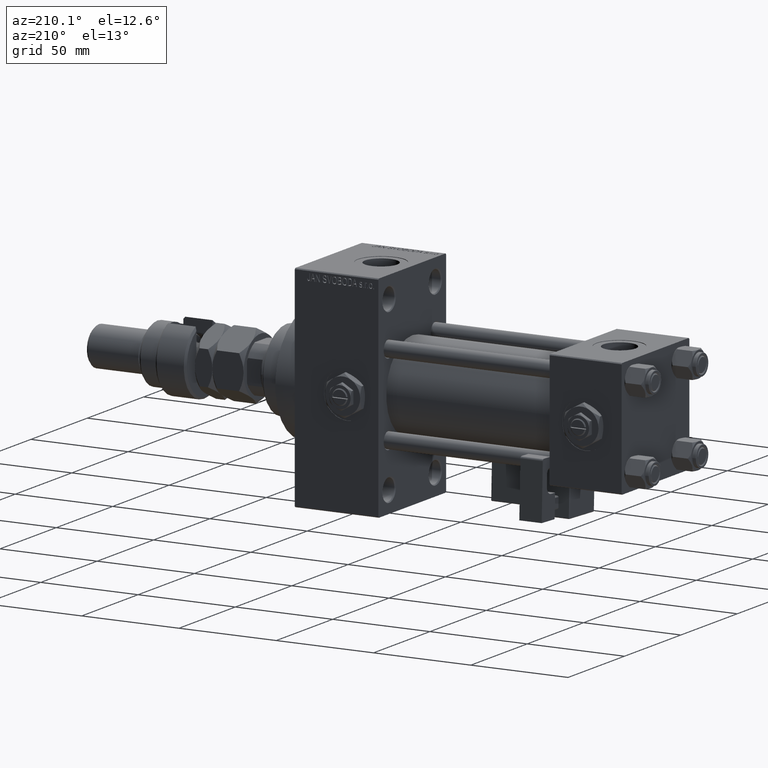
[diagram: clean part render]
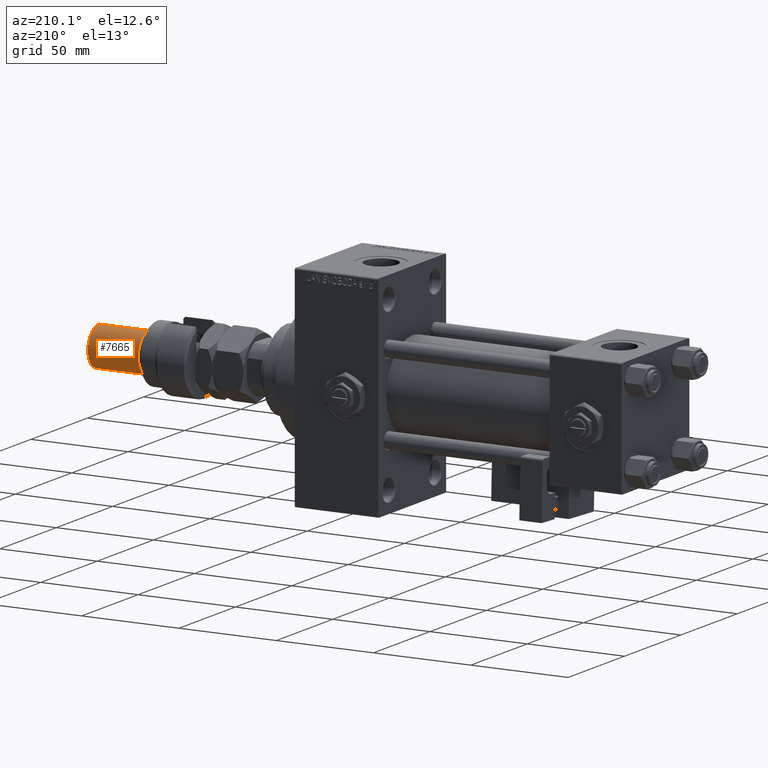
[diagram: same view with one face highlighted and labeled with its STEP entity id]
A machine part, auxiliary view. The second image highlights one B-rep face of the part: STEP entity #7665.
In plain terms, the highlighted cylindrical surface (edge-blend (fillet) strip) has radius 10 mm, axis along (-1, -0, 0).
Its self-contained STEP definition (entity closure, byte-faithful):
#910 = EDGE_LOOP ( 'NONE', ( #15152, #38939, #32067, #29486 ) ) ;
#2735 = LINE ( 'NONE', #5781, #10211 ) ;
#4776 = DIRECTION ( 'NONE',  ( 0.000000000000000000, 0.000000000000000000, -1.000000000000000000 ) ) ;
#5506 = EDGE_CURVE ( 'NONE', #52680, #47995, #48563, .T. ) ;
#5521 = CIRCLE ( 'NONE', #46932, 10.00000000000000000 ) ;
#5781 = CARTESIAN_POINT ( 'NONE',  ( -10.00000000000000000, 0.000000000000000000, 56.00000000000000711 ) ) ;
#7665 = ADVANCED_FACE ( 'NONE', ( #45862 ), #50562, .T. ) ;
#9554 = VERTEX_POINT ( 'NONE', #32298 ) ;
#10195 = CARTESIAN_POINT ( 'NONE',  ( 10.00000000000000000, 1.224646799147353256E-15, 54.99999999999998579 ) ) ;
#10200 = DIRECTION ( 'NONE',  ( -0.000000000000000000, -0.000000000000000000, -1.000000000000000000 ) ) ;
#10211 = VECTOR ( 'NONE', #10200, 1000.000000000000000 ) ;
#11004 = DIRECTION ( 'NONE',  ( -0.000000000000000000, -0.000000000000000000, -1.000000000000000000 ) ) ;
#12385 = AXIS2_PLACEMENT_3D ( 'NONE', #37285, #36201, #32098 ) ;
#15152 = ORIENTED_EDGE ( 'NONE', *, *, #52851, .T. ) ;
#15805 = CARTESIAN_POINT ( 'NONE',  ( 0.000000000000000000, 0.000000000000000000, 56.00000000000000711 ) ) ;
#21629 = DIRECTION ( 'NONE',  ( 1.000000000000000000, 0.000000000000000000, 0.000000000000000000 ) ) ;
#22246 = CARTESIAN_POINT ( 'NONE',  ( 10.00000000000000000, 1.224646799147353256E-15, 29.00000000000000711 ) ) ;
#22879 = LINE ( 'NONE', #48818, #47479 ) ;
#29486 = ORIENTED_EDGE ( 'NONE', *, *, #33487, .F. ) ;
#30288 = CARTESIAN_POINT ( 'NONE',  ( -10.00000000000000000, 0.000000000000000000, 29.00000000000000711 ) ) ;
#32067 = ORIENTED_EDGE ( 'NONE', *, *, #5506, .T. ) ;
#32098 = DIRECTION ( 'NONE',  ( 1.000000000000000000, 0.000000000000000000, 0.000000000000000000 ) ) ;
#32298 = CARTESIAN_POINT ( 'NONE',  ( -10.00000000000000000, 0.000000000000000000, 54.99999999999998579 ) ) ;
#33487 = EDGE_CURVE ( 'NONE', #9554, #47995, #2735, .T. ) ;
#36201 = DIRECTION ( 'NONE',  ( -0.000000000000000000, -0.000000000000000000, 1.000000000000000000 ) ) ;
#37285 = CARTESIAN_POINT ( 'NONE',  ( 0.000000000000000000, 0.000000000000000000, 29.00000000000000711 ) ) ;
#38709 = CARTESIAN_POINT ( 'NONE',  ( 0.000000000000000000, 0.000000000000000000, 54.99999999999998579 ) ) ;
#38939 = ORIENTED_EDGE ( 'NONE', *, *, #39273, .T. ) ;
#39273 = EDGE_CURVE ( 'NONE', #43623, #52680, #22879, .T. ) ;
#41895 = AXIS2_PLACEMENT_3D ( 'NONE', #15805, #49734, #46407 ) ;
#43623 = VERTEX_POINT ( 'NONE', #10195 ) ;
#45862 = FACE_OUTER_BOUND ( 'NONE', #910, .T. ) ;
#46407 = DIRECTION ( 'NONE',  ( -1.000000000000000000, 0.000000000000000000, 0.000000000000000000 ) ) ;
#46932 = AXIS2_PLACEMENT_3D ( 'NONE', #38709, #4776, #21629 ) ;
#47479 = VECTOR ( 'NONE', #11004, 1000.000000000000000 ) ;
#47995 = VERTEX_POINT ( 'NONE', #30288 ) ;
#48563 = CIRCLE ( 'NONE', #12385, 10.00000000000000000 ) ;
#48818 = CARTESIAN_POINT ( 'NONE',  ( 10.00000000000000000, 1.224646799147353256E-15, 56.00000000000000711 ) ) ;
#49734 = DIRECTION ( 'NONE',  ( -0.000000000000000000, -0.000000000000000000, -1.000000000000000000 ) ) ;
#50562 = CYLINDRICAL_SURFACE ( 'NONE', #41895, 10.00000000000000000 ) ;
#52680 = VERTEX_POINT ( 'NONE', #22246 ) ;
#52851 = EDGE_CURVE ( 'NONE', #9554, #43623, #5521, .T. ) ;